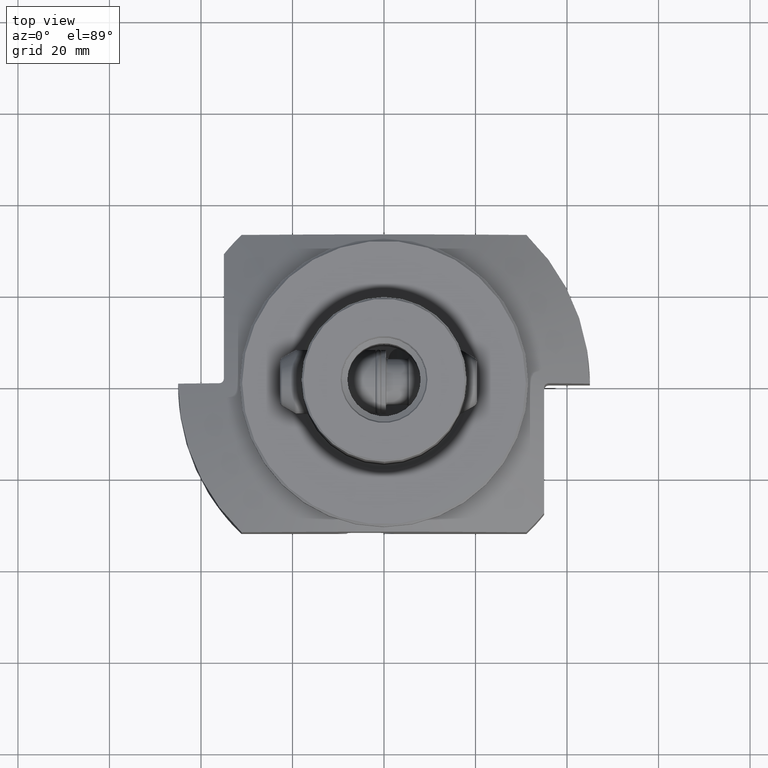
[diagram: clean part render]
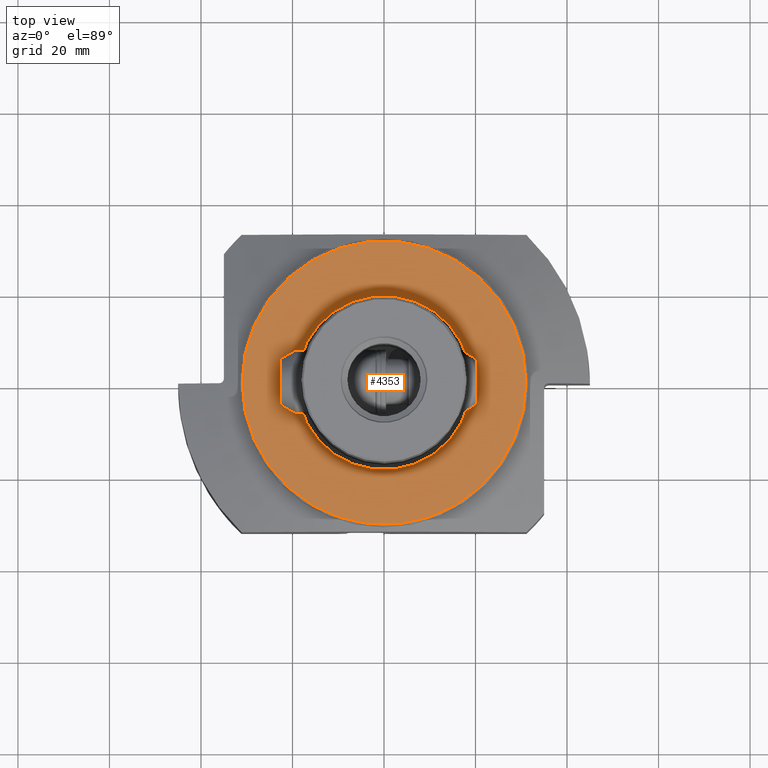
[diagram: same view with one face highlighted and labeled with its STEP entity id]
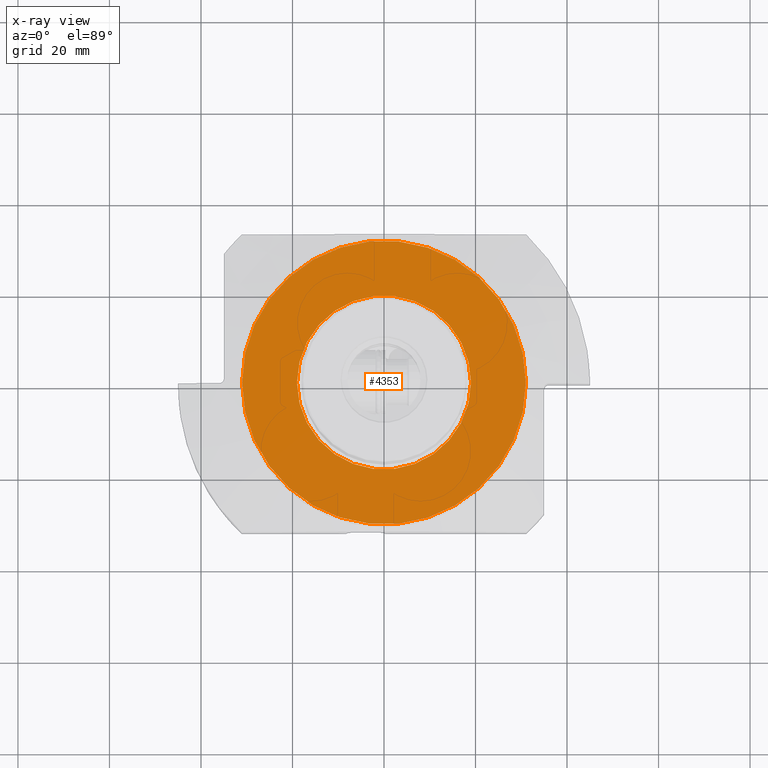
[diagram: x-ray of the same camera — body ghosted, the highlighted face saturated]
A machine part, top view. The second image highlights one B-rep face of the part: STEP entity #4353.
The next image is the same camera in x-ray: the body ghosted, the highlighted face saturated — about 0% of this face is hidden behind the body in this view.
In plain terms, the highlighted planar face has unit normal (0, -0, 1).
Its self-contained STEP definition (entity closure, byte-faithful):
#2181=EDGE_CURVE('NONE',#4783,#5155,#6301,.T.);
#2945=EDGE_CURVE('NONE',#4829,#4699,#7168,.T.);
#3765=EDGE_CURVE('NONE',#5155,#4783,#8086,.T.);
#4353=ADVANCED_FACE('NONE',(#8745,#8746),#8747,.T.);
#4699=VERTEX_POINT('NONE',#9136);
#4783=VERTEX_POINT('NONE',#9225);
#4829=VERTEX_POINT('NONE',#9281);
#5155=VERTEX_POINT('NONE',#9645);
#6117=EDGE_CURVE('NONE',#4699,#4829,#10732,.T.);
#6301=CIRCLE('',#10943,19.0122364103074);
#7168=CIRCLE('',#12259,31.0);
#8086=CIRCLE('',#13554,19.0122364103074);
#8745=FACE_OUTER_BOUND('',#14581,.T.);
#8746=FACE_BOUND('',#14582,.T.);
#8747=PLANE('',#14583);
#9136=CARTESIAN_POINT('',(31.0,-7.05874906594372E-014,0.0));
#9225=CARTESIAN_POINT('',(-19.0122364103074,4.76013350225697E-014,0.0));
#9281=CARTESIAN_POINT('',(-31.0,7.44143855151321E-014,0.0));
#9645=CARTESIAN_POINT('',(19.0122364103074,-4.52730844717262E-014,0.0));
#10732=CIRCLE('',#17705,31.0);
#10943=AXIS2_PLACEMENT_3D('',#17909,#17910,#17911);
#12259=AXIS2_PLACEMENT_3D('',#19015,#19016,#19017);
#13554=AXIS2_PLACEMENT_3D('',#20164,#20165,#20166);
#14581=EDGE_LOOP('',(#21003,#21004));
#14582=EDGE_LOOP('',(#21005,#21006));
#14583=AXIS2_PLACEMENT_3D('',#21007,#21008,#21009);
#17705=AXIS2_PLACEMENT_3D('',#23532,#23533,#23534);
#17909=CARTESIAN_POINT('',(0.0,0.0,0.0));
#17910=DIRECTION('',(0.0,-0.0,1.0));
#17911=DIRECTION('',(0.0,1.0,0.0));
#19015=CARTESIAN_POINT('',(0.0,0.0,0.0));
#19016=DIRECTION('',(0.0,0.0,-1.0));
#19017=DIRECTION('',(0.0,1.0,0.0));
#20164=CARTESIAN_POINT('',(0.0,0.0,0.0));
#20165=DIRECTION('',(0.0,-0.0,1.0));
#20166=DIRECTION('',(0.0,1.0,0.0));
#21003=ORIENTED_EDGE('',*,*,#2945,.F.);
#21004=ORIENTED_EDGE('',*,*,#6117,.F.);
#21005=ORIENTED_EDGE('',*,*,#3765,.F.);
#21006=ORIENTED_EDGE('',*,*,#2181,.F.);
#21007=CARTESIAN_POINT('',(-18.0,0.0,0.0));
#21008=DIRECTION('',(0.0,-0.0,1.0));
#21009=DIRECTION('',(0.0,1.0,0.0));
#23532=CARTESIAN_POINT('',(0.0,0.0,0.0));
#23533=DIRECTION('',(0.0,0.0,-1.0));
#23534=DIRECTION('',(0.0,1.0,0.0));